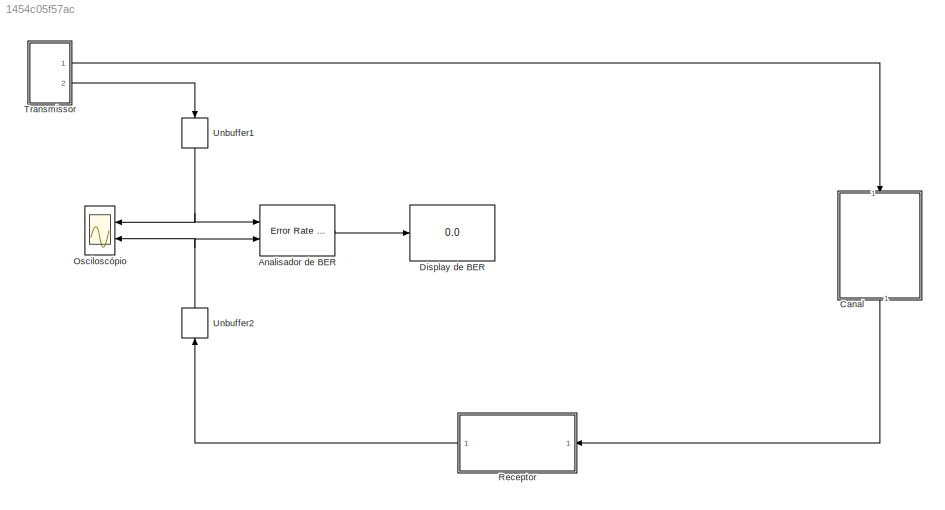
MODEL slx_1454c05f57ac
KIND model
CONFIG AbsTol = auto
CONFIG EnableMultiTasking = on
CONFIG FixedStep = auto
CONFIG MaxStep = auto
CONFIG MinStep = auto
CONFIG RelTol = 1e-3
CONFIG SampleTimeConstraint = Unconstrained
CONFIG Solver = ode45
CONFIG SolverName = ode45
CONFIG StartTime = 0.0
CONFIG StopTime = Inf
BLOCK [Reference] Analisador de BER  REF=commsink2/Error Rate
Calculation
  Ports = [2, 1]
  SourceBlock = commsink2/Error Rate\nCalculation
  SourceProductBaseCode = CM
  SourceProductName = Communications System Toolbox
  SourceType = Error Rate Calculation
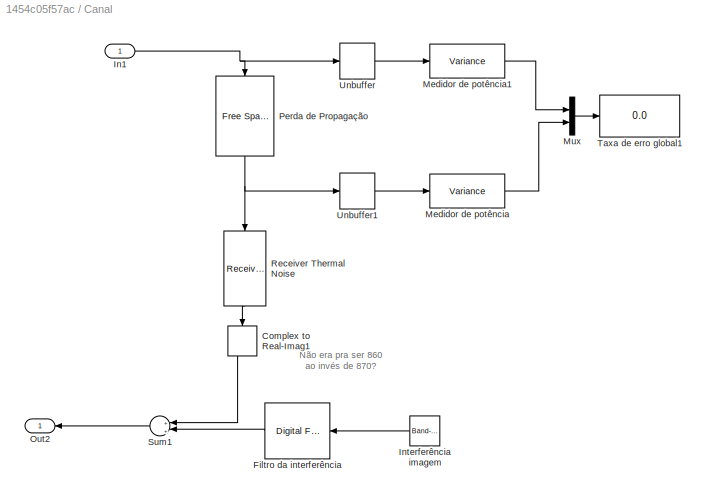
BLOCK [SubSystem] Canal
  Ports = [1, 1]
  RequestExecContextInheritance = off
  Variant = off
BLOCK [ComplexToRealImag] Canal/Complex to Real-Imag1
  Ports = [1, 2]
BLOCK [Reference] Canal/Filtro da interferência  REF=dsparch4/Digital
Filter Design
  Ports = [1, 1]
  SourceBlock = dsparch4/Digital\nFilter Design
  SourceProductBaseCode = DS
  SourceProductName = DSP System Toolbox
  SourceType = Digital Filter Design
  UserDataPersistent = on
BLOCK [Inport] Canal/In1
  IconDisplay = Port number
BLOCK [Reference] Canal/Interferência imagem  REF=simulink/Sources/Band-Limited
White Noise
  Ports = [0, 1]
  SourceBlock = simulink/Sources/Band-Limited\nWhite Noise
  SourceProductBaseCode = SL
  SourceProductName = Simulink
  SourceType = Band-Limited White Noise.
BLOCK [Reference] Canal/Medidor de potência  REF=dspstat3/Variance
  Commented = on
  Ports = [1, 1]
  SourceBlock = dspstat3/Variance
  SourceProductBaseCode = DS
  SourceProductName = DSP System Toolbox
  SourceType = Variance
  UserDataPersistent = on
BLOCK [Reference] Canal/Medidor de potência1  REF=dspstat3/Variance
  Commented = on
  Ports = [1, 1]
  SourceBlock = dspstat3/Variance
  SourceProductBaseCode = DS
  SourceProductName = DSP System Toolbox
  SourceType = Variance
  UserDataPersistent = on
BLOCK [Mux] Canal/Mux
  Commented = on
  DisplayOption = bar
  Inputs = 2
  Ports = [2, 1]
BLOCK [Outport] Canal/Out2
  IconDisplay = Port number
BLOCK [Reference] Canal/Perda de Propagação  REF=commrflib2/Free Space
Path Loss
  Ports = [1, 1]
  SourceBlock = commrflib2/Free Space\nPath Loss
  SourceProductBaseCode = CM
  SourceProductName = Communications System Toolbox
  SourceType = Free Space Path Loss
BLOCK [Reference] Canal/Receiver Thermal Noise  REF=commrflib2/Receiver
Thermal Noise
  Ports = [1, 1]
  SourceBlock = commrflib2/Receiver\nThermal Noise
  SourceProductBaseCode = CM
  SourceProductName = Communications System Toolbox
  SourceType = Receiver Thermal Noise
BLOCK [Sum] Canal/Sum1
  InputSameDT = off
  Inputs = +|+
  OutDataTypeStr = Inherit: Inherit via internal rule
  Ports = [2, 1]
  SaturateOnIntegerOverflow = off
BLOCK [Display] Canal/Taxa de erro global1
  Commented = on
  Decimation = 1
  Format = short_e
  Ports = [1]
BLOCK [Unbuffer] Canal/Unbuffer
  Commented = on
  Ports = [1, 1]
BLOCK [Unbuffer] Canal/Unbuffer1
  Commented = on
  Ports = [1, 1]
BLOCK [Display] Display de BER
  Decimation = 1
  Format = short_e
  Ports = [1]
BLOCK [Scope] Osciloscópio
  NumInputPorts = 2
  Ports = [2]
  ScopeSpecificationString = C++SS(StrPVP('Location','[5, 49, 1371, 727]'),StrPVP('Open','off'),StrPVP('ZoomMode','xonly'),MxPVP('AxesTitles',53,'struct(''axes1'',''%<SignalLabel>'',''axes2'',''%<SignalLabel>'')'),MxPVP('ScopeGraphics',56,'struct(''FigureColor'',''[0.5 0.5 0.5]'',''AxesColor'',''[0 0 0]'',''AxesTickColor'',''[1 1 1]'',''LineColors'',''[1 1 0;1 0 1;0 1 1;1 0 0;0 1 0;0 0 1]'',''LineStyles'',''-|-|-|-|-|-'',''Li...<+338ch>
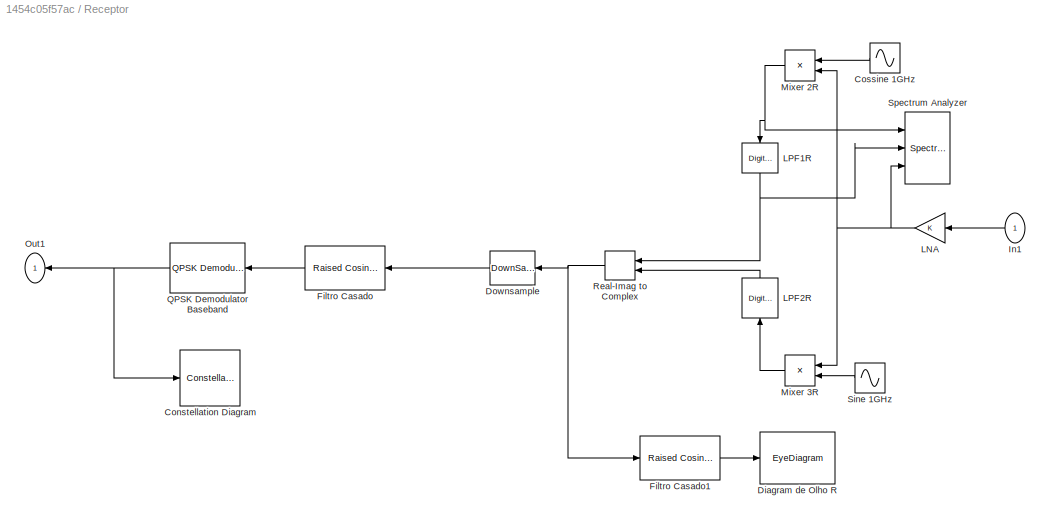
BLOCK [SubSystem] Receptor
  Ports = [1, 1]
  RequestExecContextInheritance = off
  Variant = off
BLOCK [ConstellationDiagram] Receptor/Constellation Diagram
  Commented = on
  Ports = [1]
  ScopeSpecificationString = comm.scopes.ConstellationDiagramBlockCfg('CurrentConfiguration', extmgr.ConfigurationSet(extmgr.Configuration('Core','General UI',true,'ShowCloseAll',true,'ShowBringAllForward',true,'ShowConfiguration',true,'MessageLogAutoOpenMode','for warn/fail messages'),extmgr.Configuration('Core','Source UI',true,'PlaybackToolbar',true,'ShowPlaybackCmdMode',false),extmgr.Configuration('Sources','WiredSimulink...<+1288ch>
BLOCK [Sin] Receptor/Cossine 1GHz
  Frequency = 2*pi*(1e9)
  Phase = pi/2
  Ports = [0, 1]
  SampleTime = 1/4000e6
  Samples = 4
BLOCK [EyeDiagram] Receptor/Diagram de Olho R
  Commented = on
  Ports = [1]
  ScopeSpecificationString = comm.scopes.EyeDiagramBlockCfg('CurrentConfiguration', extmgr.ConfigurationSet(extmgr.Configuration('Core','General UI',true),extmgr.Configuration('Core','Source UI',true),extmgr.Configuration('Sources','Simulink',false),extmgr.Configuration('Sources','File',false),extmgr.Configuration('Sources','Workspace',false),extmgr.Configuration('Sources','Streaming',false),extmgr.Configuration('Sources','SP...<+2246ch>
  Tag = EyeDiagram
BLOCK [DownSample] Receptor/Downsample
  N = 10
  RateOptions = Allow multirate processing
  UserDataPersistent = on
BLOCK [Reference] Receptor/Filtro Casado  REF=commfilt2/Raised Cosine
Receive Filter
  Ports = [1, 1]
  SourceBlock = commfilt2/Raised Cosine\nReceive Filter
  SourceProductBaseCode = CM
  SourceProductName = Communications System Toolbox
  SourceType = Raised Cosine Receive Filter
  UserDataPersistent = on
BLOCK [Reference] Receptor/Filtro Casado1  REF=commfilt2/Raised Cosine
Receive Filter
  Ports = [1, 1]
  SourceBlock = commfilt2/Raised Cosine\nReceive Filter
  SourceProductBaseCode = CM
  SourceProductName = Communications System Toolbox
  SourceType = Raised Cosine Receive Filter
  UserDataPersistent = on
BLOCK [Inport] Receptor/In1
  IconDisplay = Port number
BLOCK [Gain] Receptor/LNA
  OutDataTypeStr = Inherit: Inherit via internal rule
  ParamDataTypeStr = Inherit: Inherit via internal rule
  SaturateOnIntegerOverflow = off
BLOCK [Reference] Receptor/LPF1R  REF=dsparch4/Digital
Filter Design
  Ports = [1, 1]
  SourceBlock = dsparch4/Digital\nFilter Design
  SourceProductBaseCode = DS
  SourceProductName = DSP System Toolbox
  SourceType = Digital Filter Design
  UserDataPersistent = on
BLOCK [Reference] Receptor/LPF2R  REF=dsparch4/Digital
Filter Design
  Ports = [1, 1]
  SourceBlock = dsparch4/Digital\nFilter Design
  SourceProductBaseCode = DS
  SourceProductName = DSP System Toolbox
  SourceType = Digital Filter Design
  UserDataPersistent = on
BLOCK [Product] Receptor/Mixer 2R
  InputSameDT = off
  OutDataTypeStr = Inherit: Inherit via internal rule
  Ports = [2, 1]
  SaturateOnIntegerOverflow = off
BLOCK [Product] Receptor/Mixer 3R
  InputSameDT = off
  OutDataTypeStr = Inherit: Inherit via internal rule
  Ports = [2, 1]
  SaturateOnIntegerOverflow = off
BLOCK [Outport] Receptor/Out1
  IconDisplay = Port number
BLOCK [Reference] Receptor/QPSK Demodulator Baseband  REF=commdigbbndpm3/QPSK
Demodulator
Baseband
  Ports = [1, 1]
  SourceBlock = commdigbbndpm3/QPSK\nDemodulator\nBaseband
  SourceProductBaseCode = CM
  SourceProductName = Communications System Toolbox
  SourceType = QPSK Demodulator Baseband
BLOCK [RealImagToComplex] Receptor/Real-Imag to Complex
  Ports = [2, 1]
BLOCK [Sin] Receptor/Sine 1GHz
  Frequency = 2*pi*(1e9)
  Phase = pi
  Ports = [0, 1]
  SampleTime = 1/4000e6
  Samples = 4
BLOCK [SpectrumAnalyzer] Receptor/Spectrum Analyzer
  NumInputPorts = 3
  Ports = [3]
  ScopeSpecificationString = spbscopes.SpectrumAnalyzerBlockCfg('CurrentConfiguration', extmgr.ConfigurationSet(extmgr.Configuration('Core','General UI',true),extmgr.Configuration('Core','Source UI',true),extmgr.Configuration('Sources','WiredSimulink',true),extmgr.Configuration('Visuals','Spectrum',true,'AxesProperties',struct('Color',{[0 0 0],[0 0 0]},'XColor',{[0.686274509803922 0.686274509803922 0.686274509803922],[0.68627...<+1881ch>
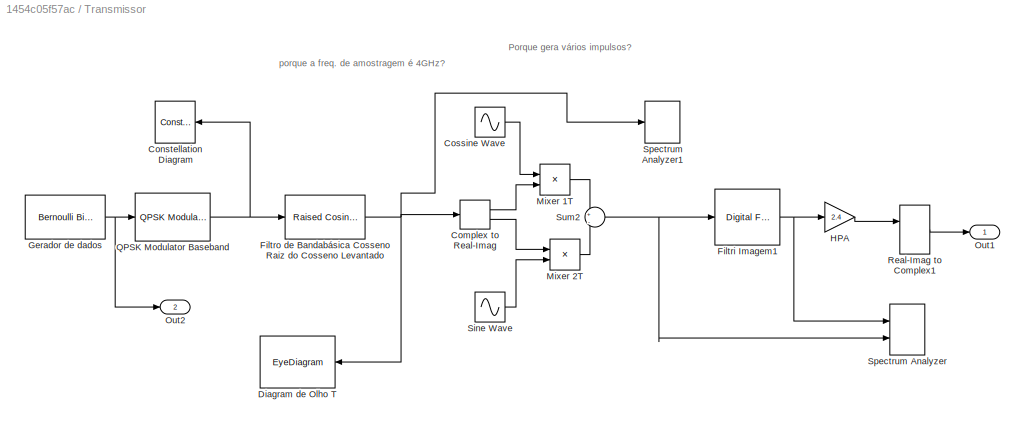
BLOCK [SubSystem] Transmissor
  Ports = [0, 2]
  RequestExecContextInheritance = off
  Variant = off
BLOCK [ComplexToRealImag] Transmissor/Complex to Real-Imag
  Ports = [1, 2]
BLOCK [ConstellationDiagram] Transmissor/Constellation Diagram
  Commented = on
  Ports = [1]
  ScopeSpecificationString = comm.scopes.ConstellationDiagramBlockCfg('CurrentConfiguration', extmgr.ConfigurationSet(extmgr.Configuration('Core','General UI',true,'FigureColor',[0.156862745098039 0.156862745098039 0.156862745098039],'ShowCloseAll',true,'ShowBringAllForward',true,'ShowConfiguration',true,'MessageLogAutoOpenMode','for warn/fail messages'),extmgr.Configuration('Core','Source UI',true,'PlaybackToolbar',true,'Sho...<+2898ch>
BLOCK [Sin] Transmissor/Cossine Wave 
  Frequency = 2*pi*(1000e6)
  Phase = pi/2
  Ports = [0, 1]
  SampleTime = 1/4000e6
  Samples = 4
BLOCK [EyeDiagram] Transmissor/Diagram de Olho T
  Commented = on
  Ports = [1]
  ScopeSpecificationString = comm.scopes.EyeDiagramBlockCfg('CurrentConfiguration', extmgr.ConfigurationSet(extmgr.Configuration('Core','General UI',true),extmgr.Configuration('Core','Source UI',true),extmgr.Configuration('Sources','Workspace',false),extmgr.Configuration('Sources','Simulink',false),extmgr.Configuration('Sources','Streaming',false),extmgr.Configuration('Sources','SPTool',false),extmgr.Configuration('Sources','...<+2048ch>
  Tag = EyeDiagram
BLOCK [Reference] Transmissor/Filtri Imagem1  REF=dsparch4/Digital
Filter Design
  Ports = [1, 1]
  SourceBlock = dsparch4/Digital\nFilter Design
  SourceProductBaseCode = DS
  SourceProductName = DSP System Toolbox
  SourceType = Digital Filter Design
  UserDataPersistent = on
BLOCK [Reference] Transmissor/Filtro de Bandabásica Cosseno Raiz do Cosseno Levantado  REF=commfilt2/Raised Cosine
Transmit Filter
  Ports = [1, 1]
  SourceBlock = commfilt2/Raised Cosine\nTransmit Filter
  SourceProductBaseCode = CM
  SourceProductName = Communications System Toolbox
  SourceType = Raised Cosine Transmit Filter
  UserDataPersistent = on
BLOCK [Reference] Transmissor/Gerador de dados  REF=commrandsrc2/Bernoulli Binary
Generator
  Ports = [0, 1]
  SourceBlock = commrandsrc2/Bernoulli Binary\nGenerator
  SourceType = Bernoulli Binary Generator
BLOCK [Gain] Transmissor/HPA
  Gain = 2.4
  OutDataTypeStr = Inherit: Inherit via internal rule
  ParamDataTypeStr = Inherit: Inherit via internal rule
  SaturateOnIntegerOverflow = off
BLOCK [Product] Transmissor/Mixer 1T
  InputSameDT = off
  OutDataTypeStr = Inherit: Inherit via internal rule
  Ports = [2, 1]
  SaturateOnIntegerOverflow = off
BLOCK [Product] Transmissor/Mixer 2T
  InputSameDT = off
  OutDataTypeStr = Inherit: Inherit via internal rule
  Ports = [2, 1]
  SaturateOnIntegerOverflow = off
BLOCK [Outport] Transmissor/Out1
  IconDisplay = Port number
BLOCK [Outport] Transmissor/Out2
  IconDisplay = Port number
  Port = 2
BLOCK [Reference] Transmissor/QPSK Modulator Baseband  REF=commdigbbndpm3/QPSK
Modulator
Baseband
  Ports = [1, 1]
  SourceBlock = commdigbbndpm3/QPSK\nModulator\nBaseband
  SourceProductBaseCode = CM
  SourceProductName = Communications System Toolbox
  SourceType = QPSK Modulator Baseband
BLOCK [RealImagToComplex] Transmissor/Real-Imag to Complex1
  Ports = [2, 1]
BLOCK [Sin] Transmissor/Sine Wave
  Frequency = 2*pi*(1000e6)
  Ports = [0, 1]
  SampleTime = 1/4000e6
  Samples = 4
BLOCK [SpectrumAnalyzer] Transmissor/Spectrum Analyzer
  NumInputPorts = 2
  Ports = [2]
  ScopeSpecificationString = spbscopes.SpectrumAnalyzerBlockCfg('CurrentConfiguration', extmgr.ConfigurationSet(extmgr.Configuration('Core','General UI',true),extmgr.Configuration('Core','Source UI',true),extmgr.Configuration('Sources','WiredSimulink',true),extmgr.Configuration('Visuals','Spectrum',true,'AxesProperties',struct('Color',{[0 0 0],[0 0 0]},'XColor',{[0.686274509803922 0.686274509803922 0.686274509803922],[0.68627...<+1834ch>
BLOCK [SpectrumAnalyzer] Transmissor/Spectrum Analyzer1
  Commented = on
  NumInputPorts = 1
  Ports = [1]
  ScopeSpecificationString = spbscopes.SpectrumAnalyzerBlockCfg('CurrentConfiguration', extmgr.ConfigurationSet(extmgr.Configuration('Core','General UI',true),extmgr.Configuration('Core','Source UI',true),extmgr.Configuration('Sources','WiredSimulink',true),extmgr.Configuration('Visuals','Spectrum',true,'AxesProperties',struct('Color',{[0 0 0],[0 0 0]},'XColor',{[0.686274509803922 0.686274509803922 0.686274509803922],[0.68627...<+3637ch>
BLOCK [Sum] Transmissor/Sum2
  IconShape = round
  InputSameDT = off
  Inputs = +|-
  OutDataTypeStr = Inherit: Inherit via internal rule
  Ports = [2, 1]
  SaturateOnIntegerOverflow = off
BLOCK [Unbuffer] Unbuffer1
  Ports = [1, 1]
BLOCK [Unbuffer] Unbuffer2
  Ports = [1, 1]
ANNOTATION Canal: Não era pra ser 860 ao invés de 870?
ANNOTATION Transmissor: Porque gera vários impulsos?
ANNOTATION Transmissor: porque a freq. de amostragem é 4GHz?
LINE Analisador de BER:1 -> Display de BER:1
LINE Canal/Complex to Real-Imag1:1 -> Canal/Sum1:1
LINE Canal/Filtro da interferência:1 -> Canal/Sum1:2
NET Canal/In1:1 -> Canal/Perda de Propagação:1, Canal/Unbuffer:1
LINE Canal/Interferência imagem:1 -> Canal/Filtro da interferência:1
LINE Canal/Medidor de potência1:1 -> Canal/Mux:1
LINE Canal/Medidor de potência:1 -> Canal/Mux:2
LINE Canal/Mux:1 -> Canal/Taxa de erro global1:1
NET Canal/Perda de Propagação:1 -> Canal/Receiver Thermal Noise:1, Canal/Unbuffer1:1
LINE Canal/Receiver Thermal Noise:1 -> Canal/Complex to Real-Imag1:1
LINE Canal/Sum1:1 -> Canal/Out2:1
LINE Canal/Unbuffer1:1 -> Canal/Medidor de potência:1
LINE Canal/Unbuffer:1 -> Canal/Medidor de potência1:1
LINE Canal:1 -> Receptor:1
LINE Receptor/Cossine 1GHz:1 -> Receptor/Mixer 2R:1
LINE Receptor/Downsample:1 -> Receptor/Filtro Casado:1
LINE Receptor/Filtro Casado1:1 -> Receptor/Diagram de Olho R:1
LINE Receptor/Filtro Casado:1 -> Receptor/QPSK Demodulator Baseband:1
LINE Receptor/In1:1 -> Receptor/LNA:1
NET Receptor/LNA:1 -> Receptor/Mixer 2R:2, Receptor/Mixer 3R:1, Receptor/Spectrum Analyzer:3
NET Receptor/LPF1R:1 -> Receptor/Real-Imag to Complex:1, Receptor/Spectrum Analyzer:2
LINE Receptor/LPF2R:1 -> Receptor/Real-Imag to Complex:2
NET Receptor/Mixer 2R:1 -> Receptor/LPF1R:1, Receptor/Spectrum Analyzer:1
LINE Receptor/Mixer 3R:1 -> Receptor/LPF2R:1
NET Receptor/QPSK Demodulator Baseband:1 -> Receptor/Constellation Diagram:1, Receptor/Out1:1
NET Receptor/Real-Imag to Complex:1 -> Receptor/Downsample:1, Receptor/Filtro Casado1:1
LINE Receptor/Sine 1GHz:1 -> Receptor/Mixer 3R:2
LINE Receptor:1 -> Unbuffer2:1
LINE Transmissor/Complex to Real-Imag:1 -> Transmissor/Mixer 1T:2
LINE Transmissor/Complex to Real-Imag:2 -> Transmissor/Mixer 2T:1
LINE Transmissor/Cossine Wave :1 -> Transmissor/Mixer 1T:1
NET Transmissor/Filtri Imagem1:1 -> Transmissor/HPA:1, Transmissor/Spectrum Analyzer:1
NET Transmissor/Filtro de Bandabásica Cosseno Raiz do Cosseno Levantado:1 -> Transmissor/Complex to Real-Imag:1, Transmissor/Diagram de Olho T:1, Transmissor/Spectrum Analyzer1:1
NET Transmissor/Gerador de dados:1 -> Transmissor/Out2:1, Transmissor/QPSK Modulator Baseband:1
LINE Transmissor/HPA:1 -> Transmissor/Real-Imag to Complex1:1
LINE Transmissor/Mixer 1T:1 -> Transmissor/Sum2:1
LINE Transmissor/Mixer 2T:1 -> Transmissor/Sum2:2
NET Transmissor/QPSK Modulator Baseband:1 -> Transmissor/Constellation Diagram:1, Transmissor/Filtro de Bandabásica Cosseno Raiz do Cosseno Levantado:1
LINE Transmissor/Real-Imag to Complex1:1 -> Transmissor/Out1:1
LINE Transmissor/Sine Wave:1 -> Transmissor/Mixer 2T:2
NET Transmissor/Sum2:1 -> Transmissor/Filtri Imagem1:1, Transmissor/Spectrum Analyzer:2
LINE Transmissor:1 -> Canal:1
LINE Transmissor:2 -> Unbuffer1:1
NET Unbuffer1:1 -> Analisador de BER:1, Osciloscópio:1
NET Unbuffer2:1 -> Analisador de BER:2, Osciloscópio:2
note: NET lines group one-source signal fan-out (src -> all destinations, sorted); 1:1 wires keep LINE
